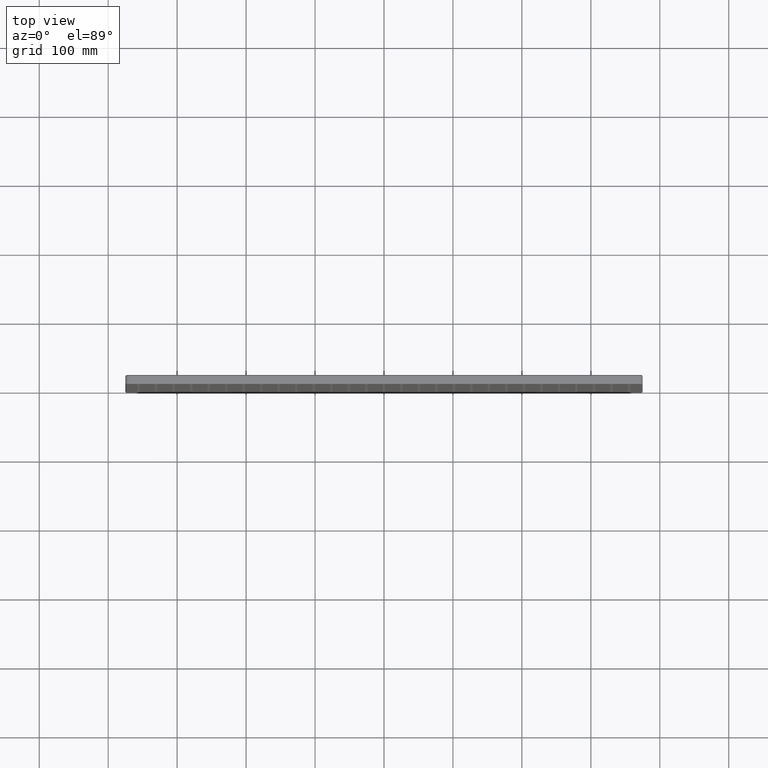
[diagram: clean part render]
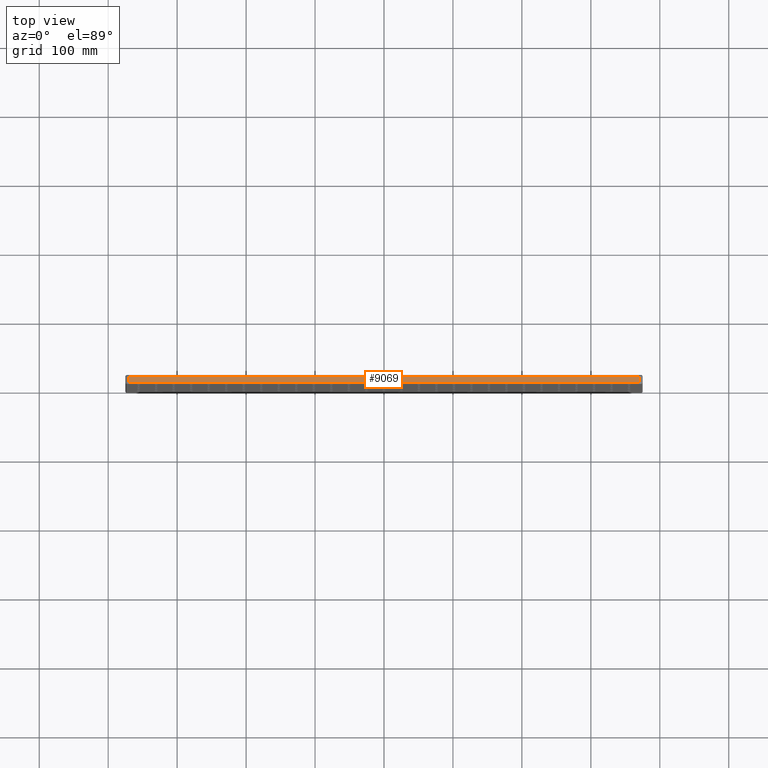
[diagram: same view with one face highlighted and labeled with its STEP entity id]
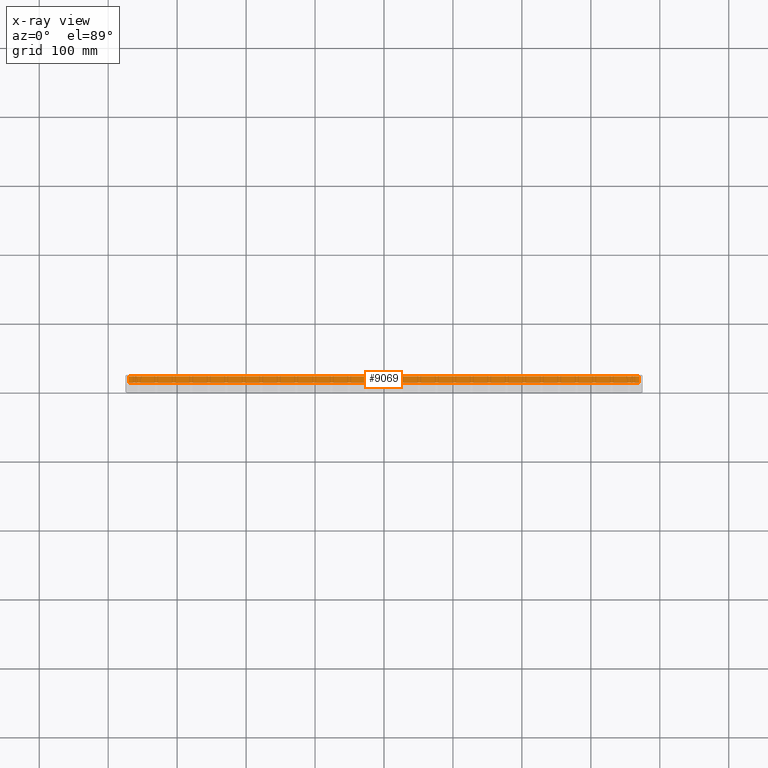
[diagram: x-ray of the same camera — body ghosted, the highlighted face saturated]
A machine part, top view. The second image highlights one B-rep face of the part: STEP entity #9069.
The next image is the same camera in x-ray: the body ghosted, the highlighted face saturated — about 0% of this face is hidden behind the body in this view.
In plain terms, the highlighted planar face has unit normal (0, 0, -1).
Its self-contained STEP definition (entity closure, byte-faithful):
#932 = CARTESIAN_POINT ( 'NONE',  ( -370.0000000000001137, 11.00000000000000000, 374.9999999999998863 ) ) ;
#4213 = AXIS2_PLACEMENT_3D ( 'NONE', #46171, #60710, #16477 ) ;
#4538 = LINE ( 'NONE', #30363, #28943 ) ;
#5245 = EDGE_CURVE ( 'NONE', #34076, #10802, #48051, .T. ) ;
#5972 = VECTOR ( 'NONE', #35020, 1000.000000000000000 ) ;
#7028 = VECTOR ( 'NONE', #49117, 1000.000000000000000 ) ;
#7772 = ORIENTED_EDGE ( 'NONE', *, *, #31568, .F. ) ;
#9069 = ADVANCED_FACE ( 'NONE', ( #26191 ), #21324, .F. ) ;
#9744 = CARTESIAN_POINT ( 'NONE',  ( 370.0000000000001137, 13.00000000000000000, 374.9999999999997726 ) ) ;
#10802 = VERTEX_POINT ( 'NONE', #23259 ) ;
#16271 = CARTESIAN_POINT ( 'NONE',  ( -370.0000000000001137, 2.000000000000003553, 374.9999999999998863 ) ) ;
#16477 = DIRECTION ( 'NONE',  ( -1.000000000000000000, 0.000000000000000000, -0.000000000000000000 ) ) ;
#21324 = PLANE ( 'NONE',  #4213 ) ;
#23259 = CARTESIAN_POINT ( 'NONE',  ( 370.0000000000001137, 2.000000000000003553, 374.9999999999997726 ) ) ;
#26191 = FACE_OUTER_BOUND ( 'NONE', #26697, .T. ) ;
#26697 = EDGE_LOOP ( 'NONE', ( #29475, #32021, #7772, #34199 ) ) ;
#26940 = CARTESIAN_POINT ( 'NONE',  ( 370.0000000000001137, 11.00000000000000000, 374.9999999999997726 ) ) ;
#28943 = VECTOR ( 'NONE', #59080, 1000.000000000000000 ) ;
#29475 = ORIENTED_EDGE ( 'NONE', *, *, #45600, .T. ) ;
#30363 = CARTESIAN_POINT ( 'NONE',  ( -370.0000000000001137, 11.00000000000000000, 374.9999999999998863 ) ) ;
#31568 = EDGE_CURVE ( 'NONE', #48409, #10802, #43963, .T. ) ;
#32021 = ORIENTED_EDGE ( 'NONE', *, *, #5245, .T. ) ;
#32599 = CARTESIAN_POINT ( 'NONE',  ( -370.0000000000001137, 2.000000000000000000, 374.9999999999998863 ) ) ;
#34076 = VERTEX_POINT ( 'NONE', #16271 ) ;
#34199 = ORIENTED_EDGE ( 'NONE', *, *, #53296, .T. ) ;
#35020 = DIRECTION ( 'NONE',  ( -0.000000000000000000, -1.000000000000000000, -0.000000000000000000 ) ) ;
#37424 = DIRECTION ( 'NONE',  ( 1.000000000000000000, -0.000000000000000000, 0.000000000000000000 ) ) ;
#42805 = VERTEX_POINT ( 'NONE', #932 ) ;
#43963 = LINE ( 'NONE', #9744, #7028 ) ;
#45600 = EDGE_CURVE ( 'NONE', #42805, #34076, #60821, .T. ) ;
#46171 = CARTESIAN_POINT ( 'NONE',  ( -370.0000000000001137, 13.00000000000000000, 374.9999999999998863 ) ) ;
#46768 = VECTOR ( 'NONE', #37424, 1000.000000000000000 ) ;
#48051 = LINE ( 'NONE', #32599, #46768 ) ;
#48409 = VERTEX_POINT ( 'NONE', #26940 ) ;
#49117 = DIRECTION ( 'NONE',  ( -0.000000000000000000, -1.000000000000000000, -0.000000000000000000 ) ) ;
#53296 = EDGE_CURVE ( 'NONE', #48409, #42805, #4538, .T. ) ;
#55350 = CARTESIAN_POINT ( 'NONE',  ( -370.0000000000001137, 13.00000000000000000, 374.9999999999998863 ) ) ;
#59080 = DIRECTION ( 'NONE',  ( -1.000000000000000000, -0.000000000000000000, -0.000000000000000000 ) ) ;
#60710 = DIRECTION ( 'NONE',  ( 0.000000000000000000, 0.000000000000000000, -1.000000000000000000 ) ) ;
#60821 = LINE ( 'NONE', #55350, #5972 ) ;